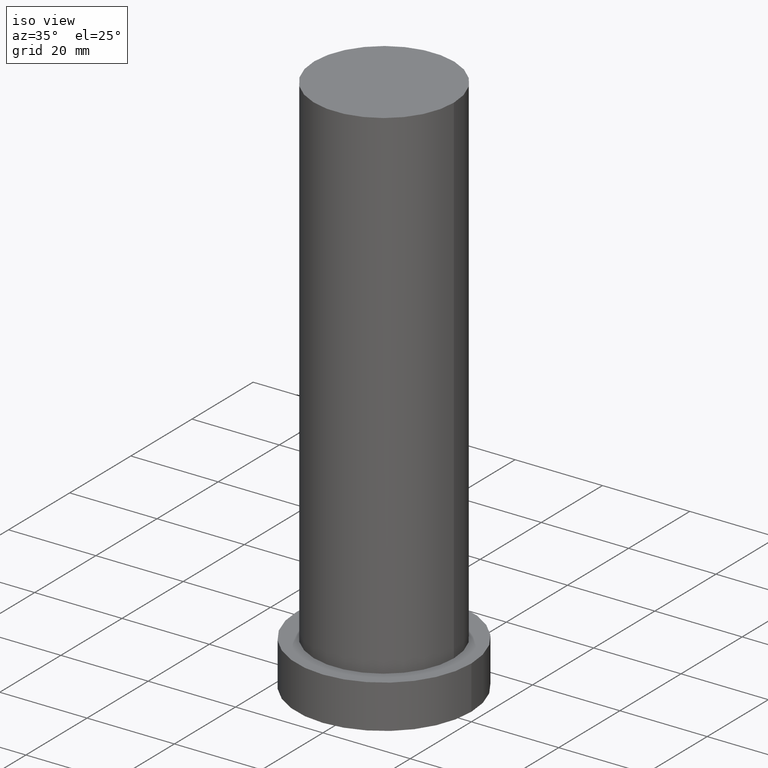
[diagram: clean part render]
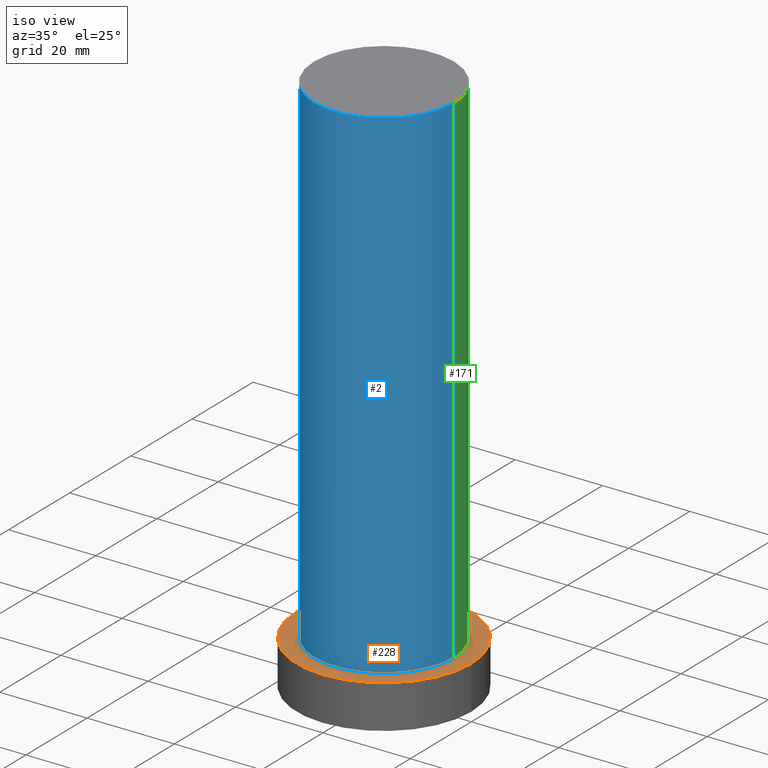
[diagram: same view with three faces highlighted in distinct colors, each labeled with its STEP entity id]
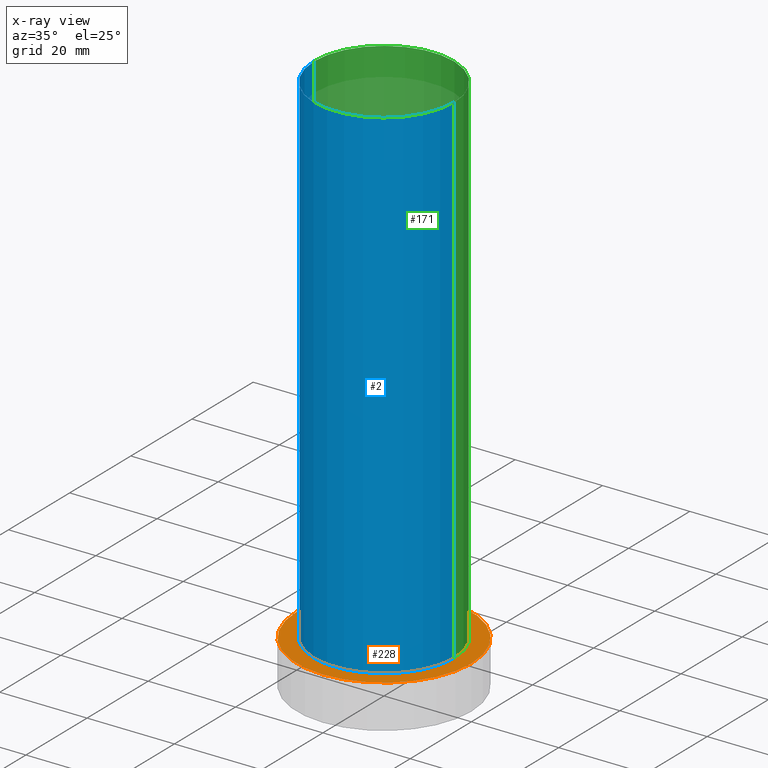
[diagram: x-ray of the same camera — body ghosted, the three highlighted faces saturated]
A machine part, iso view with three faces highlighted in distinct colors.
The next image is the same camera in x-ray (body ghosted, the three faces saturated) — at least one of them is partly hidden behind the body in this view.
Their STEP definitions:

[orange] entity #228 — the highlighted planar face has unit normal (0, 0, 1).
#3 = DIRECTION ( 'NONE',  ( 0.000000000000000000, 0.000000000000000000, 1.000000000000000000 ) ) ;
#16 = CARTESIAN_POINT ( 'NONE',  ( 20.00000000000000000, 2.449293598294706513E-15, 10.00000000000000000 ) ) ;
#19 = CIRCLE ( 'NONE', #58, 16.00000000000000000 ) ;
#24 = CARTESIAN_POINT ( 'NONE',  ( 0.000000000000000000, 0.000000000000000000, 10.00000000000000000 ) ) ;
#26 = VERTEX_POINT ( 'NONE', #16 ) ;
#35 = EDGE_CURVE ( 'NONE', #26, #119, #74, .T. ) ;
#58 = AXIS2_PLACEMENT_3D ( 'NONE', #24, #149, #92 ) ;
#67 = CARTESIAN_POINT ( 'NONE',  ( 0.000000000000000000, 0.000000000000000000, 10.00000000000000000 ) ) ;
#74 = CIRCLE ( 'NONE', #221, 20.00000000000000000 ) ;
#87 = FACE_BOUND ( 'NONE', #223, .T. ) ;
#90 = CARTESIAN_POINT ( 'NONE',  ( 16.00000000000000000, 1.959434878635765131E-15, 10.00000000000000000 ) ) ;
#91 = AXIS2_PLACEMENT_3D ( 'NONE', #245, #3, #226 ) ;
#92 = DIRECTION ( 'NONE',  ( 1.000000000000000000, 0.000000000000000000, 0.000000000000000000 ) ) ;
#111 = PLANE ( 'NONE',  #203 ) ;
#119 = VERTEX_POINT ( 'NONE', #148 ) ;
#125 = CIRCLE ( 'NONE', #244, 20.00000000000000000 ) ;
#130 = CARTESIAN_POINT ( 'NONE',  ( 0.000000000000000000, 0.000000000000000000, 10.00000000000000000 ) ) ;
#145 = CARTESIAN_POINT ( 'NONE',  ( 0.000000000000000000, 0.000000000000000000, 10.00000000000000000 ) ) ;
#148 = CARTESIAN_POINT ( 'NONE',  ( -20.00000000000000000, 0.000000000000000000, 10.00000000000000000 ) ) ;
#149 = DIRECTION ( 'NONE',  ( 0.000000000000000000, 0.000000000000000000, 1.000000000000000000 ) ) ;
#151 = EDGE_CURVE ( 'NONE', #186, #206, #19, .T. ) ;
#161 = DIRECTION ( 'NONE',  ( 0.000000000000000000, 0.000000000000000000, 1.000000000000000000 ) ) ;
#172 = ORIENTED_EDGE ( 'NONE', *, *, #181, .T. ) ;
#181 = EDGE_CURVE ( 'NONE', #119, #26, #125, .T. ) ;
#183 = DIRECTION ( 'NONE',  ( 0.000000000000000000, 0.000000000000000000, 1.000000000000000000 ) ) ;
#186 = VERTEX_POINT ( 'NONE', #243 ) ;
#188 = DIRECTION ( 'NONE',  ( 1.000000000000000000, 0.000000000000000000, -0.000000000000000000 ) ) ;
#189 = EDGE_CURVE ( 'NONE', #206, #186, #200, .T. ) ;
#194 = ORIENTED_EDGE ( 'NONE', *, *, #151, .F. ) ;
#200 = CIRCLE ( 'NONE', #91, 16.00000000000000000 ) ;
#202 = ORIENTED_EDGE ( 'NONE', *, *, #35, .T. ) ;
#203 = AXIS2_PLACEMENT_3D ( 'NONE', #67, #207, #188 ) ;
#206 = VERTEX_POINT ( 'NONE', #90 ) ;
#207 = DIRECTION ( 'NONE',  ( 0.000000000000000000, 0.000000000000000000, 1.000000000000000000 ) ) ;
#208 = DIRECTION ( 'NONE',  ( 1.000000000000000000, 0.000000000000000000, 0.000000000000000000 ) ) ;
#213 = ORIENTED_EDGE ( 'NONE', *, *, #189, .F. ) ;
#221 = AXIS2_PLACEMENT_3D ( 'NONE', #145, #161, #222 ) ;
#222 = DIRECTION ( 'NONE',  ( 1.000000000000000000, 0.000000000000000000, 0.000000000000000000 ) ) ;
#223 = EDGE_LOOP ( 'NONE', ( #194, #213 ) ) ;
#226 = DIRECTION ( 'NONE',  ( 1.000000000000000000, 0.000000000000000000, 0.000000000000000000 ) ) ;
#228 = ADVANCED_FACE ( 'NONE', ( #87, #246 ), #111, .T. ) ;
#243 = CARTESIAN_POINT ( 'NONE',  ( -16.00000000000000000, 0.000000000000000000, 10.00000000000000000 ) ) ;
#244 = AXIS2_PLACEMENT_3D ( 'NONE', #130, #183, #208 ) ;
#245 = CARTESIAN_POINT ( 'NONE',  ( 0.000000000000000000, 0.000000000000000000, 10.00000000000000000 ) ) ;
#246 = FACE_OUTER_BOUND ( 'NONE', #252, .T. ) ;
#252 = EDGE_LOOP ( 'NONE', ( #172, #202 ) ) ;

[blue] entity #2 — the highlighted cylindrical surface (partial cylindrical patch) has radius 16 mm, axis along (-0, -0, -1).
#2 = ADVANCED_FACE ( 'NONE', ( #39 ), #176, .T. ) ;
#19 = CIRCLE ( 'NONE', #58, 16.00000000000000000 ) ;
#24 = CARTESIAN_POINT ( 'NONE',  ( 0.000000000000000000, 0.000000000000000000, 10.00000000000000000 ) ) ;
#25 = LINE ( 'NONE', #27, #180 ) ;
#27 = CARTESIAN_POINT ( 'NONE',  ( -16.00000000000000000, 0.000000000000000000, 125.0000000000000000 ) ) ;
#29 = CARTESIAN_POINT ( 'NONE',  ( 16.00000000000000000, 1.959434878635765131E-15, 125.0000000000000000 ) ) ;
#37 = VERTEX_POINT ( 'NONE', #103 ) ;
#39 = FACE_OUTER_BOUND ( 'NONE', #123, .T. ) ;
#49 = EDGE_CURVE ( 'NONE', #37, #236, #62, .T. ) ;
#54 = ORIENTED_EDGE ( 'NONE', *, *, #49, .F. ) ;
#58 = AXIS2_PLACEMENT_3D ( 'NONE', #24, #149, #92 ) ;
#62 = CIRCLE ( 'NONE', #205, 16.00000000000000000 ) ;
#66 = CARTESIAN_POINT ( 'NONE',  ( 16.00000000000000000, 1.959434878635765131E-15, 125.0000000000000000 ) ) ;
#88 = DIRECTION ( 'NONE',  ( -0.000000000000000000, -0.000000000000000000, -1.000000000000000000 ) ) ;
#89 = AXIS2_PLACEMENT_3D ( 'NONE', #218, #136, #122 ) ;
#90 = CARTESIAN_POINT ( 'NONE',  ( 16.00000000000000000, 1.959434878635765131E-15, 10.00000000000000000 ) ) ;
#92 = DIRECTION ( 'NONE',  ( 1.000000000000000000, 0.000000000000000000, 0.000000000000000000 ) ) ;
#101 = ORIENTED_EDGE ( 'NONE', *, *, #151, .T. ) ;
#103 = CARTESIAN_POINT ( 'NONE',  ( -16.00000000000000000, 0.000000000000000000, 125.0000000000000000 ) ) ;
#106 = ORIENTED_EDGE ( 'NONE', *, *, #141, .F. ) ;
#122 = DIRECTION ( 'NONE',  ( -1.000000000000000000, 0.000000000000000000, 0.000000000000000000 ) ) ;
#123 = EDGE_LOOP ( 'NONE', ( #106, #54, #234, #101 ) ) ;
#136 = DIRECTION ( 'NONE',  ( -0.000000000000000000, -0.000000000000000000, -1.000000000000000000 ) ) ;
#140 = VECTOR ( 'NONE', #204, 1000.000000000000000 ) ;
#141 = EDGE_CURVE ( 'NONE', #236, #206, #185, .T. ) ;
#149 = DIRECTION ( 'NONE',  ( 0.000000000000000000, 0.000000000000000000, 1.000000000000000000 ) ) ;
#151 = EDGE_CURVE ( 'NONE', #186, #206, #19, .T. ) ;
#176 = CYLINDRICAL_SURFACE ( 'NONE', #89, 16.00000000000000000 ) ;
#180 = VECTOR ( 'NONE', #88, 1000.000000000000000 ) ;
#185 = LINE ( 'NONE', #66, #140 ) ;
#186 = VERTEX_POINT ( 'NONE', #243 ) ;
#199 = EDGE_CURVE ( 'NONE', #37, #186, #25, .T. ) ;
#204 = DIRECTION ( 'NONE',  ( -0.000000000000000000, -0.000000000000000000, -1.000000000000000000 ) ) ;
#205 = AXIS2_PLACEMENT_3D ( 'NONE', #254, #240, #231 ) ;
#206 = VERTEX_POINT ( 'NONE', #90 ) ;
#218 = CARTESIAN_POINT ( 'NONE',  ( 0.000000000000000000, 0.000000000000000000, 125.0000000000000000 ) ) ;
#231 = DIRECTION ( 'NONE',  ( 1.000000000000000000, 0.000000000000000000, 0.000000000000000000 ) ) ;
#234 = ORIENTED_EDGE ( 'NONE', *, *, #199, .T. ) ;
#236 = VERTEX_POINT ( 'NONE', #29 ) ;
#240 = DIRECTION ( 'NONE',  ( 0.000000000000000000, 0.000000000000000000, 1.000000000000000000 ) ) ;
#243 = CARTESIAN_POINT ( 'NONE',  ( -16.00000000000000000, 0.000000000000000000, 10.00000000000000000 ) ) ;
#254 = CARTESIAN_POINT ( 'NONE',  ( 0.000000000000000000, 0.000000000000000000, 125.0000000000000000 ) ) ;

[green] entity #171 — the highlighted cylindrical surface (partial cylindrical patch) has radius 16 mm, axis along (-0, -0, -1).
#3 = DIRECTION ( 'NONE',  ( 0.000000000000000000, 0.000000000000000000, 1.000000000000000000 ) ) ;
#13 = EDGE_LOOP ( 'NONE', ( #251, #175, #75, #80 ) ) ;
#21 = CIRCLE ( 'NONE', #59, 16.00000000000000000 ) ;
#22 = CARTESIAN_POINT ( 'NONE',  ( 0.000000000000000000, 0.000000000000000000, 125.0000000000000000 ) ) ;
#25 = LINE ( 'NONE', #27, #180 ) ;
#27 = CARTESIAN_POINT ( 'NONE',  ( -16.00000000000000000, 0.000000000000000000, 125.0000000000000000 ) ) ;
#29 = CARTESIAN_POINT ( 'NONE',  ( 16.00000000000000000, 1.959434878635765131E-15, 125.0000000000000000 ) ) ;
#37 = VERTEX_POINT ( 'NONE', #103 ) ;
#42 = CYLINDRICAL_SURFACE ( 'NONE', #224, 16.00000000000000000 ) ;
#45 = DIRECTION ( 'NONE',  ( 0.000000000000000000, 0.000000000000000000, 1.000000000000000000 ) ) ;
#59 = AXIS2_PLACEMENT_3D ( 'NONE', #22, #45, #227 ) ;
#66 = CARTESIAN_POINT ( 'NONE',  ( 16.00000000000000000, 1.959434878635765131E-15, 125.0000000000000000 ) ) ;
#75 = ORIENTED_EDGE ( 'NONE', *, *, #189, .T. ) ;
#80 = ORIENTED_EDGE ( 'NONE', *, *, #199, .F. ) ;
#88 = DIRECTION ( 'NONE',  ( -0.000000000000000000, -0.000000000000000000, -1.000000000000000000 ) ) ;
#90 = CARTESIAN_POINT ( 'NONE',  ( 16.00000000000000000, 1.959434878635765131E-15, 10.00000000000000000 ) ) ;
#91 = AXIS2_PLACEMENT_3D ( 'NONE', #245, #3, #226 ) ;
#103 = CARTESIAN_POINT ( 'NONE',  ( -16.00000000000000000, 0.000000000000000000, 125.0000000000000000 ) ) ;
#131 = FACE_OUTER_BOUND ( 'NONE', #13, .T. ) ;
#140 = VECTOR ( 'NONE', #204, 1000.000000000000000 ) ;
#141 = EDGE_CURVE ( 'NONE', #236, #206, #185, .T. ) ;
#165 = DIRECTION ( 'NONE',  ( -0.000000000000000000, -0.000000000000000000, -1.000000000000000000 ) ) ;
#166 = DIRECTION ( 'NONE',  ( -1.000000000000000000, 0.000000000000000000, 0.000000000000000000 ) ) ;
#171 = ADVANCED_FACE ( 'NONE', ( #131 ), #42, .T. ) ;
#175 = ORIENTED_EDGE ( 'NONE', *, *, #141, .T. ) ;
#180 = VECTOR ( 'NONE', #88, 1000.000000000000000 ) ;
#185 = LINE ( 'NONE', #66, #140 ) ;
#186 = VERTEX_POINT ( 'NONE', #243 ) ;
#189 = EDGE_CURVE ( 'NONE', #206, #186, #200, .T. ) ;
#199 = EDGE_CURVE ( 'NONE', #37, #186, #25, .T. ) ;
#200 = CIRCLE ( 'NONE', #91, 16.00000000000000000 ) ;
#204 = DIRECTION ( 'NONE',  ( -0.000000000000000000, -0.000000000000000000, -1.000000000000000000 ) ) ;
#206 = VERTEX_POINT ( 'NONE', #90 ) ;
#220 = EDGE_CURVE ( 'NONE', #236, #37, #21, .T. ) ;
#224 = AXIS2_PLACEMENT_3D ( 'NONE', #255, #165, #166 ) ;
#226 = DIRECTION ( 'NONE',  ( 1.000000000000000000, 0.000000000000000000, 0.000000000000000000 ) ) ;
#227 = DIRECTION ( 'NONE',  ( 1.000000000000000000, 0.000000000000000000, 0.000000000000000000 ) ) ;
#236 = VERTEX_POINT ( 'NONE', #29 ) ;
#243 = CARTESIAN_POINT ( 'NONE',  ( -16.00000000000000000, 0.000000000000000000, 10.00000000000000000 ) ) ;
#245 = CARTESIAN_POINT ( 'NONE',  ( 0.000000000000000000, 0.000000000000000000, 10.00000000000000000 ) ) ;
#251 = ORIENTED_EDGE ( 'NONE', *, *, #220, .F. ) ;
#255 = CARTESIAN_POINT ( 'NONE',  ( 0.000000000000000000, 0.000000000000000000, 125.0000000000000000 ) ) ;